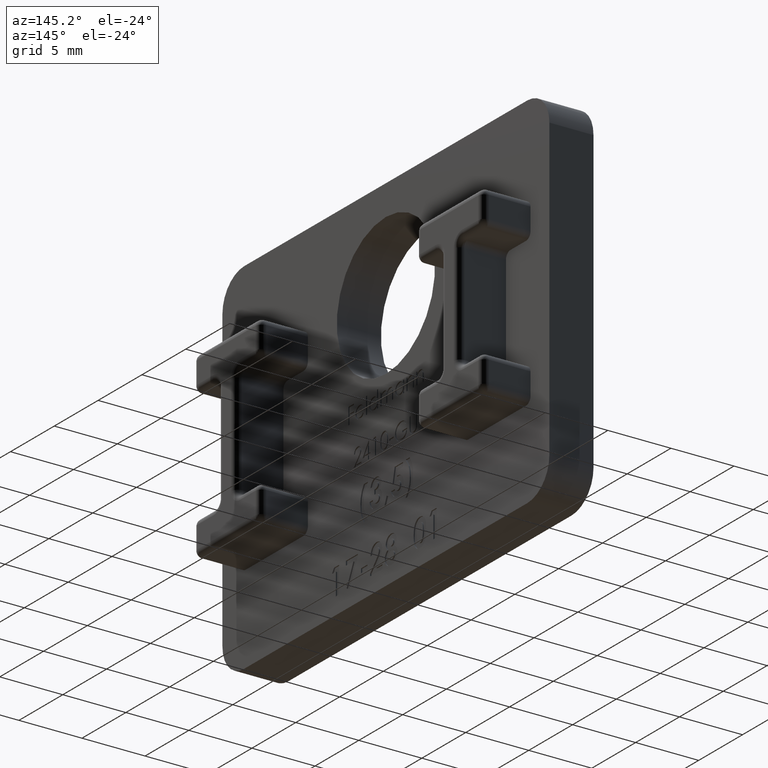
[diagram: clean part render]
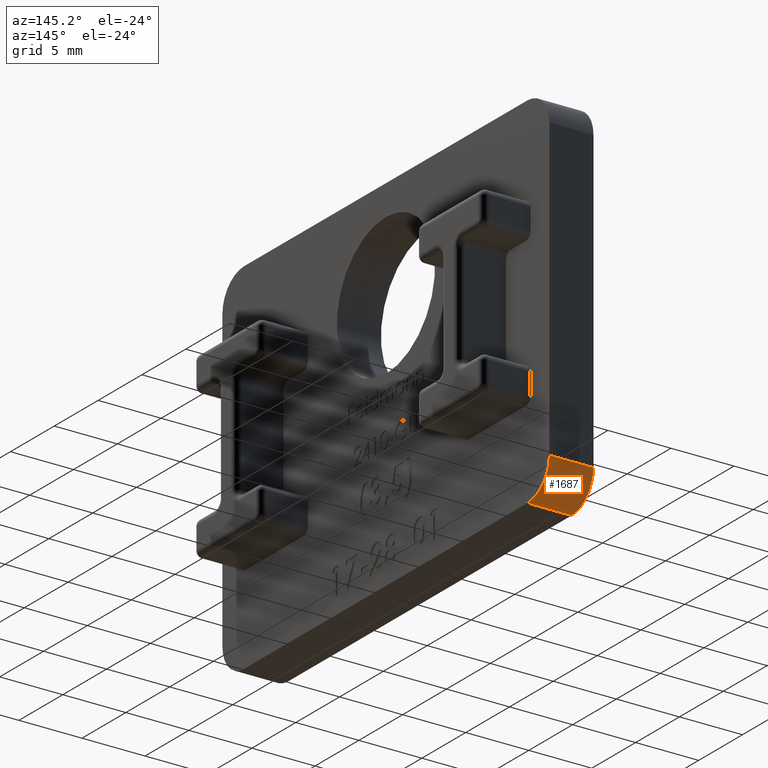
[diagram: same view with one face highlighted and labeled with its STEP entity id]
A machine part, auxiliary view. The second image highlights one B-rep face of the part: STEP entity #1687.
In plain terms, the highlighted cylindrical surface (partial cylindrical patch) has radius 2.5 mm, axis along (-1, 0, 0).
Its self-contained STEP definition (entity closure, byte-faithful):
#43 = CARTESIAN_POINT ( 'NONE',  ( 1.750000000000000000, 18.65000000000000213, -11.84999999999999609 ) ) ;
#1278 = ORIENTED_EDGE ( 'NONE', *, *, #3943, .F. ) ;
#1687 = ADVANCED_FACE ( 'NONE', ( #19265 ), #12025, .T. ) ;
#2316 = LINE ( 'NONE', #8057, #21088 ) ;
#2441 = LINE ( 'NONE', #3292, #12246 ) ;
#3292 = CARTESIAN_POINT ( 'NONE',  ( 1.750000000000000000, 16.15000000000000568, -14.34999999999999432 ) ) ;
#3651 = DIRECTION ( 'NONE',  ( 0.000000000000000000, 0.000000000000000000, 1.000000000000000000 ) ) ;
#3943 = EDGE_CURVE ( 'NONE', #14806, #16148, #2441, .T. ) ;
#4526 = EDGE_CURVE ( 'NONE', #13014, #14806, #23790, .T. ) ;
#5813 = AXIS2_PLACEMENT_3D ( 'NONE', #8815, #12535, #3651 ) ;
#6918 = CIRCLE ( 'NONE', #12187, 2.500000000000000444 ) ;
#8057 = CARTESIAN_POINT ( 'NONE',  ( 1.750000000000000000, 18.65000000000000213, -11.84999999999999609 ) ) ;
#8782 = DIRECTION ( 'NONE',  ( -1.000000000000000000, -0.000000000000000000, -0.000000000000000000 ) ) ;
#8815 = CARTESIAN_POINT ( 'NONE',  ( 1.750000000000000000, 16.15000000000000568, -11.84999999999999609 ) ) ;
#8969 = ORIENTED_EDGE ( 'NONE', *, *, #23028, .F. ) ;
#9347 = CARTESIAN_POINT ( 'NONE',  ( -1.750000000000000000, 16.15000000000000568, -14.34999999999999432 ) ) ;
#9521 = ORIENTED_EDGE ( 'NONE', *, *, #4526, .F. ) ;
#10309 = DIRECTION ( 'NONE',  ( 0.000000000000000000, 0.000000000000000000, -1.000000000000000000 ) ) ;
#10394 = CARTESIAN_POINT ( 'NONE',  ( -1.750000000000000000, 16.15000000000000568, -11.84999999999999609 ) ) ;
#12025 = CYLINDRICAL_SURFACE ( 'NONE', #5813, 2.500000000000000444 ) ;
#12187 = AXIS2_PLACEMENT_3D ( 'NONE', #19501, #14190, #15705 ) ;
#12246 = VECTOR ( 'NONE', #16326, 1000.000000000000000 ) ;
#12535 = DIRECTION ( 'NONE',  ( -1.000000000000000000, 0.000000000000000000, 0.000000000000000000 ) ) ;
#12900 = EDGE_CURVE ( 'NONE', #18316, #13014, #2316, .T. ) ;
#13014 = VERTEX_POINT ( 'NONE', #23706 ) ;
#14190 = DIRECTION ( 'NONE',  ( 1.000000000000000000, 0.000000000000000000, 0.000000000000000000 ) ) ;
#14806 = VERTEX_POINT ( 'NONE', #9347 ) ;
#15705 = DIRECTION ( 'NONE',  ( 0.000000000000000000, 0.000000000000000000, -1.000000000000000000 ) ) ;
#15732 = CARTESIAN_POINT ( 'NONE',  ( 1.750000000000000000, 16.15000000000000568, -14.34999999999999432 ) ) ;
#15802 = DIRECTION ( 'NONE',  ( -1.000000000000000000, 0.000000000000000000, 0.000000000000000000 ) ) ;
#16148 = VERTEX_POINT ( 'NONE', #15732 ) ;
#16326 = DIRECTION ( 'NONE',  ( 1.000000000000000000, -0.000000000000000000, -0.000000000000000000 ) ) ;
#18316 = VERTEX_POINT ( 'NONE', #43 ) ;
#18386 = ORIENTED_EDGE ( 'NONE', *, *, #12900, .F. ) ;
#18480 = EDGE_LOOP ( 'NONE', ( #8969, #1278, #9521, #18386 ) ) ;
#19265 = FACE_OUTER_BOUND ( 'NONE', #18480, .T. ) ;
#19501 = CARTESIAN_POINT ( 'NONE',  ( 1.750000000000000000, 16.15000000000000568, -11.84999999999999609 ) ) ;
#21088 = VECTOR ( 'NONE', #15802, 1000.000000000000000 ) ;
#22079 = AXIS2_PLACEMENT_3D ( 'NONE', #10394, #8782, #10309 ) ;
#23028 = EDGE_CURVE ( 'NONE', #16148, #18316, #6918, .T. ) ;
#23706 = CARTESIAN_POINT ( 'NONE',  ( -1.750000000000000000, 18.65000000000000213, -11.84999999999999609 ) ) ;
#23790 = CIRCLE ( 'NONE', #22079, 2.500000000000000444 ) ;